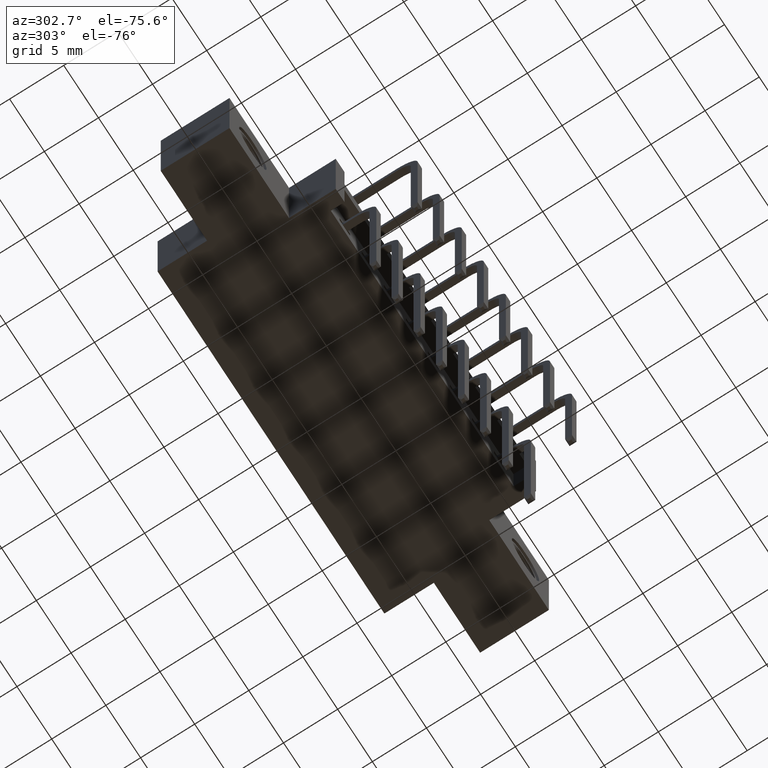
[diagram: clean part render]
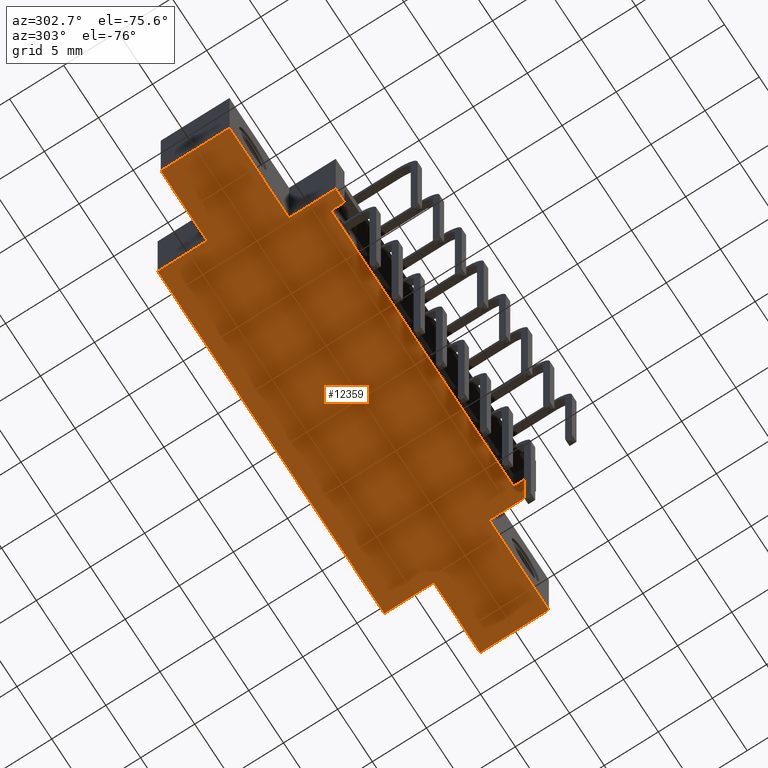
[diagram: same view with one face highlighted and labeled with its STEP entity id]
A machine part, auxiliary view. The second image highlights one B-rep face of the part: STEP entity #12359.
In plain terms, the highlighted planar face has unit normal (-0, 0, 1).
Its self-contained STEP definition (entity closure, byte-faithful):
#64 = ORIENTED_EDGE ( 'NONE', *, *, #11644, .F. ) ;
#142 = CARTESIAN_POINT ( 'NONE',  ( 0.0000000000000000000, 0.0000000000000000000, -0.3700000000000001600 ) ) ;
#183 = VECTOR ( 'NONE', #6687, 39.37007874015748100 ) ;
#221 = ORIENTED_EDGE ( 'NONE', *, *, #8466, .F. ) ;
#262 = CARTESIAN_POINT ( 'NONE',  ( 0.2625000000000000100, 0.4199999999999999800, -0.3700000000000001600 ) ) ;
#314 = CARTESIAN_POINT ( 'NONE',  ( 0.0000000000000000000, 0.1699999999999999800, -0.3700000000000001600 ) ) ;
#333 = VECTOR ( 'NONE', #5743, 39.37007874015748100 ) ;
#384 = CARTESIAN_POINT ( 'NONE',  ( 1.472500000000000100, 0.0000000000000000000, -0.3700000000000000000 ) ) ;
#479 = CARTESIAN_POINT ( 'NONE',  ( 1.472500000000000100, 0.1699999999999999800, -0.3700000000000000000 ) ) ;
#506 = CARTESIAN_POINT ( 'NONE',  ( 1.810000000000000100, 0.1699999999999999800, -0.3699999999999999400 ) ) ;
#530 = VECTOR ( 'NONE', #5467, 39.37007874015748100 ) ;
#547 = VECTOR ( 'NONE', #7536, 39.37007874015748100 ) ;
#613 = VECTOR ( 'NONE', #3047, 39.37007874015748100 ) ;
#618 = CARTESIAN_POINT ( 'NONE',  ( 1.422500000000000100, 0.05000000000000000300, -0.3700000000000000000 ) ) ;
#642 = LINE ( 'NONE', #9616, #183 ) ;
#770 = LINE ( 'NONE', #314, #8284 ) ;
#886 = CARTESIAN_POINT ( 'NONE',  ( 0.3874999999999999000, 0.05000000000000000300, -0.3700000000000001600 ) ) ;
#904 = CARTESIAN_POINT ( 'NONE',  ( 0.0000000000000000000, 0.5999999999999999800, -0.3700000000000001600 ) ) ;
#1126 = CARTESIAN_POINT ( 'NONE',  ( 0.3375000000000002400, 0.1699999999999999800, -0.3700000000000001600 ) ) ;
#1185 = LINE ( 'NONE', #12491, #547 ) ;
#1209 = ORIENTED_EDGE ( 'NONE', *, *, #3456, .F. ) ;
#1236 = EDGE_CURVE ( 'NONE', #9067, #1569, #1185, .T. ) ;
#1347 = LINE ( 'NONE', #262, #2122 ) ;
#1533 = EDGE_CURVE ( 'NONE', #6552, #5595, #5551, .T. ) ;
#1551 = EDGE_CURVE ( 'NONE', #8192, #11638, #7590, .T. ) ;
#1569 = VERTEX_POINT ( 'NONE', #384 ) ;
#1582 = ORIENTED_EDGE ( 'NONE', *, *, #1533, .F. ) ;
#1713 = CARTESIAN_POINT ( 'NONE',  ( 0.3375000000000002400, 0.1699999999999999800, -0.3700000000000001600 ) ) ;
#1778 = CARTESIAN_POINT ( 'NONE',  ( 1.422500000000000100, 0.0000000000000000000, -0.3700000000000000000 ) ) ;
#2122 = VECTOR ( 'NONE', #5345, 39.37007874015748100 ) ;
#2222 = ORIENTED_EDGE ( 'NONE', *, *, #10156, .F. ) ;
#2279 = CARTESIAN_POINT ( 'NONE',  ( 1.810000000000000100, 0.4199999999999999800, -0.3700000000000000000 ) ) ;
#2396 = VECTOR ( 'NONE', #2720, 39.37007874015748100 ) ;
#2495 = LINE ( 'NONE', #12910, #613 ) ;
#2720 = DIRECTION ( 'NONE',  ( -0.0000000000000000000, -1.000000000000000000, -0.0000000000000000000 ) ) ;
#2858 = CARTESIAN_POINT ( 'NONE',  ( 0.3874999999999999000, 0.0000000000000000000, -0.3700000000000001600 ) ) ;
#3047 = DIRECTION ( 'NONE',  ( -1.000000000000000000, -0.0000000000000000000, -7.546541418962053100E-017 ) ) ;
#3084 = EDGE_CURVE ( 'NONE', #1569, #6575, #8599, .T. ) ;
#3092 = CARTESIAN_POINT ( 'NONE',  ( 1.810000000000000100, 0.4200000000000000400, -0.3700000000000000000 ) ) ;
#3160 = VERTEX_POINT ( 'NONE', #1126 ) ;
#3183 = VERTEX_POINT ( 'NONE', #11013 ) ;
#3232 = ORIENTED_EDGE ( 'NONE', *, *, #11146, .T. ) ;
#3304 = VECTOR ( 'NONE', #6729, 39.37007874015748100 ) ;
#3349 = VECTOR ( 'NONE', #5914, 39.37007874015748100 ) ;
#3434 = VERTEX_POINT ( 'NONE', #10868 ) ;
#3456 = EDGE_CURVE ( 'NONE', #6479, #6854, #2495, .T. ) ;
#3523 = VERTEX_POINT ( 'NONE', #2858 ) ;
#3559 = CARTESIAN_POINT ( 'NONE',  ( 1.547500000000000100, 0.5999999999999999800, -0.3699999999999998800 ) ) ;
#3561 = CARTESIAN_POINT ( 'NONE',  ( 1.422500000000000100, 0.05000000000000000300, -0.3700000000000000000 ) ) ;
#3649 = LINE ( 'NONE', #4081, #8769 ) ;
#3808 = ORIENTED_EDGE ( 'NONE', *, *, #7908, .F. ) ;
#3963 = VERTEX_POINT ( 'NONE', #6508 ) ;
#3997 = AXIS2_PLACEMENT_3D ( 'NONE', #904, #9854, #8607 ) ;
#4072 = CARTESIAN_POINT ( 'NONE',  ( 0.0000000000000000000, 0.4199999999999999800, -0.3700000000000001600 ) ) ;
#4081 = CARTESIAN_POINT ( 'NONE',  ( 0.0000000000000000000, 0.0000000000000000000, -0.3700000000000001600 ) ) ;
#4104 = DIRECTION ( 'NONE',  ( -0.0000000000000000000, -1.000000000000000000, -0.0000000000000000000 ) ) ;
#4139 = ORIENTED_EDGE ( 'NONE', *, *, #1236, .T. ) ;
#4372 = DIRECTION ( 'NONE',  ( -1.000000000000000000, -0.0000000000000000000, -7.546541418962053100E-017 ) ) ;
#4454 = CARTESIAN_POINT ( 'NONE',  ( 0.3874999999999999000, 0.05000000000000000300, -0.3700000000000001600 ) ) ;
#4569 = EDGE_CURVE ( 'NONE', #3434, #8192, #10024, .T. ) ;
#4685 = DIRECTION ( 'NONE',  ( -0.0000000000000000000, -1.000000000000000000, -0.0000000000000000000 ) ) ;
#4944 = VECTOR ( 'NONE', #4104, 39.37007874015748100 ) ;
#5049 = EDGE_CURVE ( 'NONE', #9067, #10724, #12029, .T. ) ;
#5107 = ORIENTED_EDGE ( 'NONE', *, *, #1551, .F. ) ;
#5323 = DIRECTION ( 'NONE',  ( 1.000000000000000000, 0.0000000000000000000, 0.0000000000000000000 ) ) ;
#5345 = DIRECTION ( 'NONE',  ( -0.0000000000000000000, 1.000000000000000000, -0.0000000000000000000 ) ) ;
#5467 = DIRECTION ( 'NONE',  ( 1.000000000000000000, 0.0000000000000000000, 1.319733330272590700E-016 ) ) ;
#5551 = LINE ( 'NONE', #4454, #530 ) ;
#5595 = VERTEX_POINT ( 'NONE', #3561 ) ;
#5743 = DIRECTION ( 'NONE',  ( 1.000000000000000000, -0.0000000000000000000, 2.023591106417973200E-016 ) ) ;
#5914 = DIRECTION ( 'NONE',  ( -1.000000000000000000, -0.0000000000000000000, -0.0000000000000000000 ) ) ;
#6046 = ORIENTED_EDGE ( 'NONE', *, *, #4569, .F. ) ;
#6270 = ORIENTED_EDGE ( 'NONE', *, *, #8083, .T. ) ;
#6412 = ORIENTED_EDGE ( 'NONE', *, *, #12553, .F. ) ;
#6470 = LINE ( 'NONE', #9823, #2396 ) ;
#6479 = VERTEX_POINT ( 'NONE', #3559 ) ;
#6508 = CARTESIAN_POINT ( 'NONE',  ( 1.547500000000000100, 0.4199999999999999800, -0.3699999999999998800 ) ) ;
#6552 = VERTEX_POINT ( 'NONE', #886 ) ;
#6575 = VERTEX_POINT ( 'NONE', #1778 ) ;
#6597 = VECTOR ( 'NONE', #8348, 39.37007874015748100 ) ;
#6687 = DIRECTION ( 'NONE',  ( -0.0000000000000000000, -1.000000000000000000, -0.0000000000000000000 ) ) ;
#6729 = DIRECTION ( 'NONE',  ( -1.000000000000000000, -0.0000000000000000000, -7.546541418962053100E-017 ) ) ;
#6854 = VERTEX_POINT ( 'NONE', #7171 ) ;
#6943 = LINE ( 'NONE', #618, #9691 ) ;
#7171 = CARTESIAN_POINT ( 'NONE',  ( 0.2625000000000000100, 0.5999999999999999800, -0.3700000000000001600 ) ) ;
#7479 = VECTOR ( 'NONE', #4685, 39.37007874015748100 ) ;
#7536 = DIRECTION ( 'NONE',  ( -0.0000000000000000000, -1.000000000000000000, -0.0000000000000000000 ) ) ;
#7590 = LINE ( 'NONE', #7854, #4944 ) ;
#7645 = VECTOR ( 'NONE', #12433, 39.37007874015748100 ) ;
#7854 = CARTESIAN_POINT ( 'NONE',  ( 0.0000000000000000000, 0.5999999999999999800, -0.3700000000000001600 ) ) ;
#7861 = CARTESIAN_POINT ( 'NONE',  ( 0.0000000000000000000, 0.4199999999999999800, -0.3700000000000001600 ) ) ;
#7908 = EDGE_CURVE ( 'NONE', #5595, #6575, #6943, .T. ) ;
#8083 = EDGE_CURVE ( 'NONE', #6552, #3523, #642, .T. ) ;
#8192 = VERTEX_POINT ( 'NONE', #4072 ) ;
#8284 = VECTOR ( 'NONE', #5323, 39.37007874015748100 ) ;
#8334 = ORIENTED_EDGE ( 'NONE', *, *, #10788, .T. ) ;
#8348 = DIRECTION ( 'NONE',  ( -0.0000000000000000000, 1.000000000000000000, -0.0000000000000000000 ) ) ;
#8466 = EDGE_CURVE ( 'NONE', #11197, #3963, #10116, .T. ) ;
#8599 = LINE ( 'NONE', #142, #3304 ) ;
#8607 = DIRECTION ( 'NONE',  ( 1.000000000000000000, 0.0000000000000000000, 7.546541418962054300E-017 ) ) ;
#8769 = VECTOR ( 'NONE', #4372, 39.37007874015748100 ) ;
#9067 = VERTEX_POINT ( 'NONE', #479 ) ;
#9166 = CARTESIAN_POINT ( 'NONE',  ( 0.0000000000000000000, 0.1699999999999999800, -0.3700000000000001600 ) ) ;
#9532 = EDGE_CURVE ( 'NONE', #3434, #6854, #1347, .T. ) ;
#9616 = CARTESIAN_POINT ( 'NONE',  ( 0.3874999999999999000, 0.05000000000000000300, -0.3700000000000001600 ) ) ;
#9691 = VECTOR ( 'NONE', #11405, 39.37007874015748100 ) ;
#9823 = CARTESIAN_POINT ( 'NONE',  ( 1.810000000000000100, 0.5999999999999999800, -0.3700000000000000000 ) ) ;
#9854 = DIRECTION ( 'NONE',  ( -7.546541418962054300E-017, 0.0000000000000000000, 1.000000000000000000 ) ) ;
#10024 = LINE ( 'NONE', #7861, #3349 ) ;
#10044 = ORIENTED_EDGE ( 'NONE', *, *, #9532, .T. ) ;
#10116 = LINE ( 'NONE', #2279, #7645 ) ;
#10156 = EDGE_CURVE ( 'NONE', #3963, #6479, #11890, .T. ) ;
#10724 = VERTEX_POINT ( 'NONE', #506 ) ;
#10788 = EDGE_CURVE ( 'NONE', #11197, #10724, #6470, .T. ) ;
#10868 = CARTESIAN_POINT ( 'NONE',  ( 0.2625000000000000100, 0.4199999999999999800, -0.3700000000000001600 ) ) ;
#11013 = CARTESIAN_POINT ( 'NONE',  ( 0.3375000000000002400, 0.0000000000000000000, -0.3700000000000001600 ) ) ;
#11088 = ORIENTED_EDGE ( 'NONE', *, *, #3084, .T. ) ;
#11146 = EDGE_CURVE ( 'NONE', #3523, #3183, #3649, .T. ) ;
#11197 = VERTEX_POINT ( 'NONE', #3092 ) ;
#11315 = LINE ( 'NONE', #1713, #7479 ) ;
#11405 = DIRECTION ( 'NONE',  ( -0.0000000000000000000, -1.000000000000000000, -0.0000000000000000000 ) ) ;
#11529 = ORIENTED_EDGE ( 'NONE', *, *, #5049, .F. ) ;
#11638 = VERTEX_POINT ( 'NONE', #9166 ) ;
#11644 = EDGE_CURVE ( 'NONE', #11638, #3160, #770, .T. ) ;
#11876 = EDGE_LOOP ( 'NONE', ( #11529, #4139, #11088, #3808, #1582, #6270, #3232, #6412, #64, #5107, #6046, #10044, #1209, #2222, #221, #8334 ) ) ;
#11890 = LINE ( 'NONE', #12288, #6597 ) ;
#12029 = LINE ( 'NONE', #12562, #333 ) ;
#12133 = FACE_OUTER_BOUND ( 'NONE', #11876, .T. ) ;
#12288 = CARTESIAN_POINT ( 'NONE',  ( 1.547500000000000100, 0.4199999999999999800, -0.3699999999999998800 ) ) ;
#12359 = ADVANCED_FACE ( 'NONE', ( #12133 ), #12472, .F. ) ;
#12433 = DIRECTION ( 'NONE',  ( -1.000000000000000000, 0.0000000000000000000, 5.203519987931929900E-016 ) ) ;
#12472 = PLANE ( 'NONE',  #3997 ) ;
#12491 = CARTESIAN_POINT ( 'NONE',  ( 1.472500000000000100, 0.1699999999999999800, -0.3700000000000000000 ) ) ;
#12553 = EDGE_CURVE ( 'NONE', #3160, #3183, #11315, .T. ) ;
#12562 = CARTESIAN_POINT ( 'NONE',  ( 1.810000000000000100, 0.1699999999999999800, -0.3699999999999999400 ) ) ;
#12910 = CARTESIAN_POINT ( 'NONE',  ( 0.0000000000000000000, 0.5999999999999999800, -0.3700000000000001600 ) ) ;